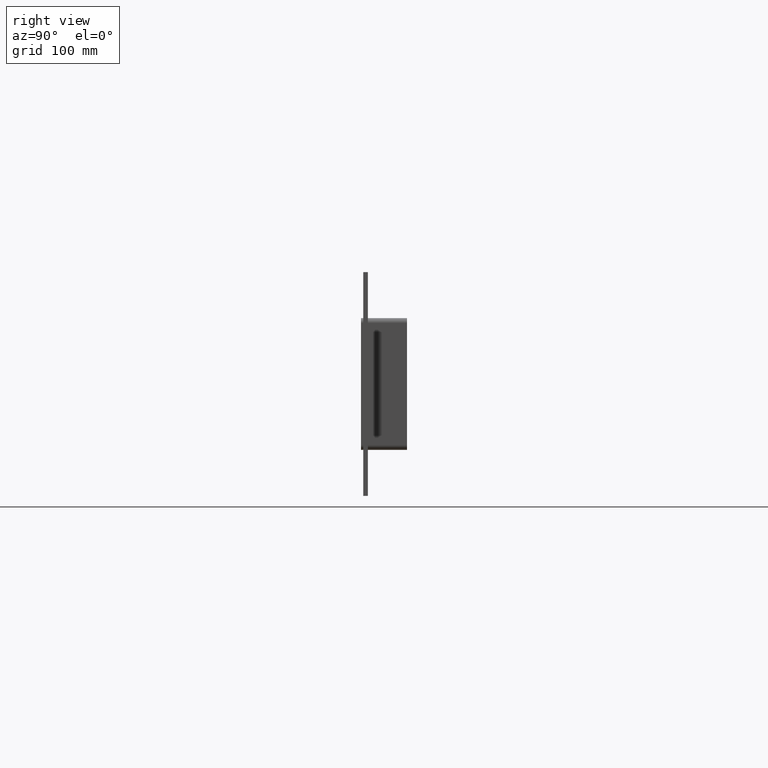
[diagram: clean part render]
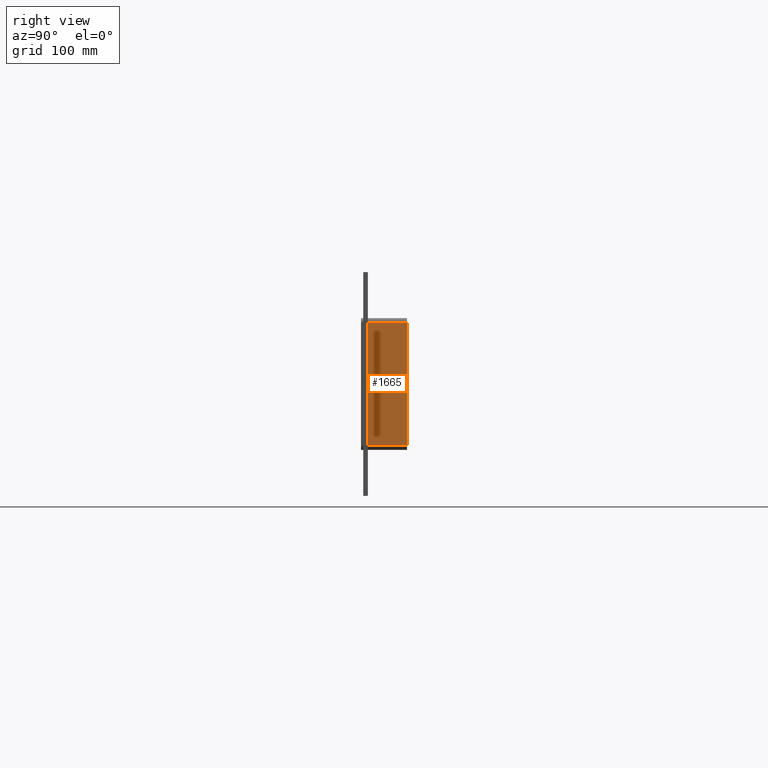
[diagram: same view with one face highlighted and labeled with its STEP entity id]
A machine part, right view. The second image highlights one B-rep face of the part: STEP entity #1665.
In plain terms, the highlighted planar face has unit normal (1, 0, 0).
Its self-contained STEP definition (entity closure, byte-faithful):
#1260=CARTESIAN_POINT('',(392.50000000000011,6.000000000000001,-79.750000000000028));
#1261=VERTEX_POINT('',#1260);
#1269=CARTESIAN_POINT('',(392.50000000000011,6.000000000000001,79.750000000000028));
#1270=VERTEX_POINT('',#1269);
#1271=CARTESIAN_POINT('',(392.50000000000011,6.000000000000001,79.750000000000028));
#1272=DIRECTION('',(0.0,0.0,-1.0));
#1273=VECTOR('',#1272,159.50000000000006);
#1274=LINE('',#1271,#1273);
#1275=EDGE_CURVE('',#1270,#1261,#1274,.T.);
#1592=CARTESIAN_POINT('',(392.50000000000011,57.0,79.750000000000028));
#1593=VERTEX_POINT('',#1592);
#1594=CARTESIAN_POINT('',(392.50000000000011,6.000000000000001,79.750000000000028));
#1595=DIRECTION('',(0.0,1.0,0.0));
#1596=VECTOR('',#1595,51.0);
#1597=LINE('',#1594,#1596);
#1598=EDGE_CURVE('',#1270,#1593,#1597,.T.);
#1642=CARTESIAN_POINT('',(392.50000000000011,0.0,85.750000000000028));
#1643=DIRECTION('',(1.0,0.0,0.0));
#1644=DIRECTION('',(0.0,0.0,-1.0));
#1645=AXIS2_PLACEMENT_3D('',#1642,#1643,#1644);
#1646=PLANE('',#1645);
#1647=ORIENTED_EDGE('',*,*,#1275,.T.);
#1648=CARTESIAN_POINT('',(392.50000000000011,57.0,-79.750000000000014));
#1649=VERTEX_POINT('',#1648);
#1650=CARTESIAN_POINT('',(392.50000000000011,57.0,-79.750000000000028));
#1651=DIRECTION('',(0.0,-1.0,0.0));
#1652=VECTOR('',#1651,51.0);
#1653=LINE('',#1650,#1652);
#1654=EDGE_CURVE('',#1649,#1261,#1653,.T.);
#1655=ORIENTED_EDGE('',*,*,#1654,.F.);
#1656=CARTESIAN_POINT('',(392.50000000000011,57.0,79.750000000000028));
#1657=DIRECTION('',(0.0,0.0,-1.0));
#1658=VECTOR('',#1657,159.50000000000006);
#1659=LINE('',#1656,#1658);
#1660=EDGE_CURVE('',#1593,#1649,#1659,.T.);
#1661=ORIENTED_EDGE('',*,*,#1660,.F.);
#1662=ORIENTED_EDGE('',*,*,#1598,.F.);
#1663=EDGE_LOOP('',(#1647,#1655,#1661,#1662));
#1664=FACE_OUTER_BOUND('',#1663,.T.);
#1665=ADVANCED_FACE('',(#1664),#1646,.T.);